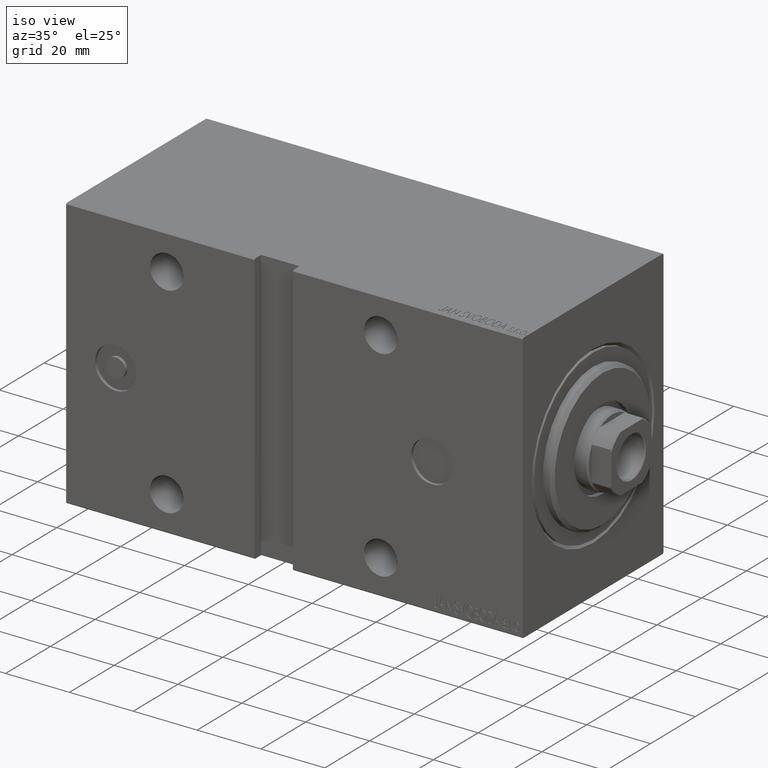
[diagram: clean part render]
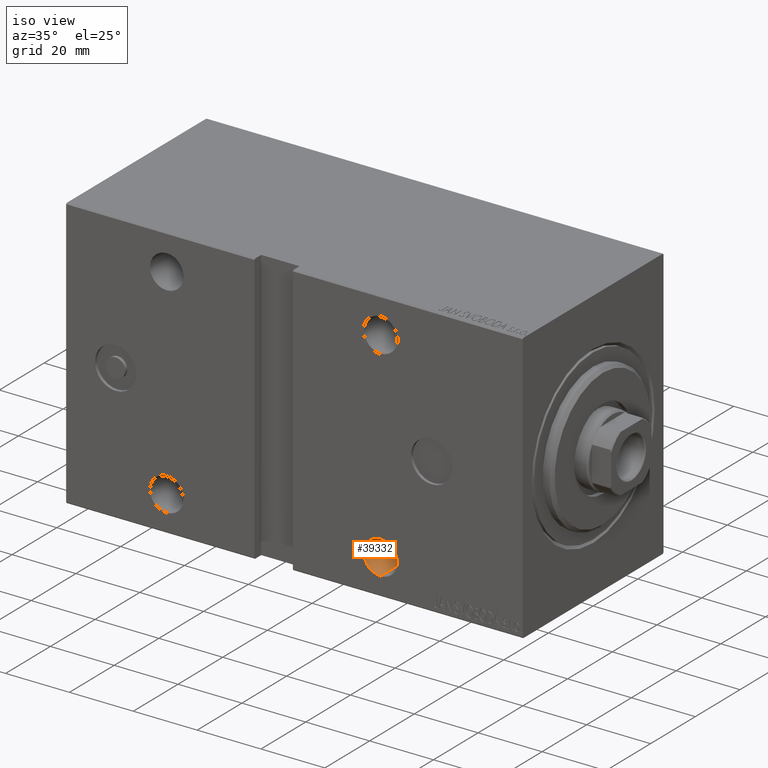
[diagram: same view with one face highlighted and labeled with its STEP entity id]
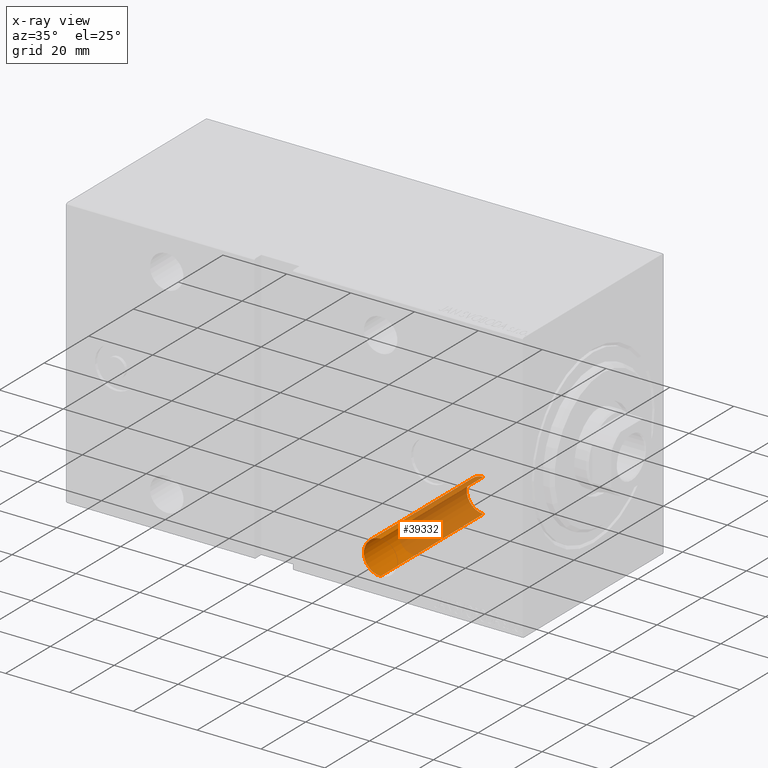
[diagram: x-ray of the same camera — body ghosted, the highlighted face saturated]
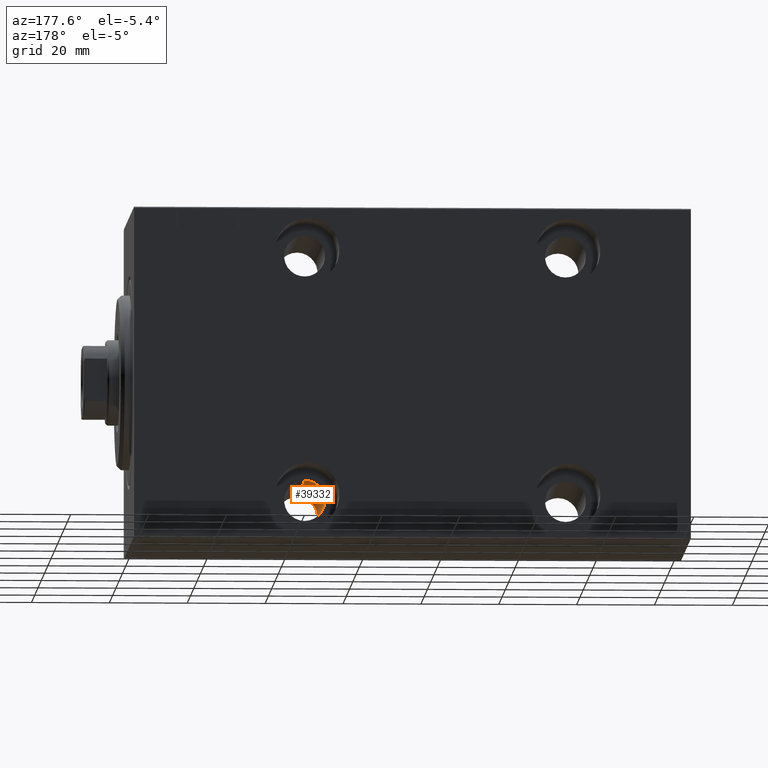
[diagram: same view with one face highlighted and labeled with its STEP entity id]
A machine part, iso view. The second image highlights one B-rep face of the part: STEP entity #39332.
The next image is the same camera in x-ray: the body ghosted, the highlighted face saturated — about 66% of this face is hidden behind the body in this view.
A second angle (auxiliary view) of the same face is appended — the face is thin or edge-on in the first view.
In plain terms, the highlighted cylindrical surface (edge-blend (fillet) strip) has radius 5.25 mm, axis along (0, -1, 0).
Its self-contained STEP definition (entity closure, byte-faithful):
#431 = FACE_OUTER_BOUND ( 'NONE', #41445, .T. ) ;
#1294 = DIRECTION ( 'NONE',  ( -0.000000000000000000, 1.000000000000000000, 1.261617073437677752E-16 ) ) ;
#4425 = CARTESIAN_POINT ( 'NONE',  ( 44.50000000000000000, 31.50000000000001421, -26.25000000000000000 ) ) ;
#5113 = LINE ( 'NONE', #38494, #8010 ) ;
#5143 = ORIENTED_EDGE ( 'NONE', *, *, #36064, .F. ) ;
#5244 = VERTEX_POINT ( 'NONE', #6611 ) ;
#6611 = CARTESIAN_POINT ( 'NONE',  ( 44.50000000000000000, -14.49999999999999289, -26.25000000000000355 ) ) ;
#8010 = VECTOR ( 'NONE', #31561, 1000.000000000000000 ) ;
#8047 = CARTESIAN_POINT ( 'NONE',  ( 44.50000000000000000, 31.50000000000001421, -36.74999999999999289 ) ) ;
#8673 = CARTESIAN_POINT ( 'NONE',  ( 44.50000000000000000, 31.50000000000001421, -31.49999999999999289 ) ) ;
#9537 = ORIENTED_EDGE ( 'NONE', *, *, #15369, .F. ) ;
#9586 = VERTEX_POINT ( 'NONE', #4425 ) ;
#11306 = ORIENTED_EDGE ( 'NONE', *, *, #32054, .F. ) ;
#13675 = DIRECTION ( 'NONE',  ( 0.000000000000000000, 0.000000000000000000, 1.000000000000000000 ) ) ;
#15369 = EDGE_CURVE ( 'NONE', #40821, #9586, #25179, .T. ) ;
#17338 = CYLINDRICAL_SURFACE ( 'NONE', #29530, 5.249999999999997335 ) ;
#17682 = CIRCLE ( 'NONE', #35000, 5.249999999999997335 ) ;
#18232 = ORIENTED_EDGE ( 'NONE', *, *, #21783, .T. ) ;
#19112 = LINE ( 'NONE', #31905, #34780 ) ;
#21572 = CARTESIAN_POINT ( 'NONE',  ( 44.50000000000000000, -14.49999999999999289, -31.50000000000000000 ) ) ;
#21783 = EDGE_CURVE ( 'NONE', #5244, #9586, #19112, .T. ) ;
#24919 = DIRECTION ( 'NONE',  ( 0.000000000000000000, -1.000000000000000000, -1.632680918566406300E-16 ) ) ;
#25179 = CIRCLE ( 'NONE', #31414, 5.249999999999997335 ) ;
#25457 = DIRECTION ( 'NONE',  ( -0.000000000000000000, 1.000000000000000000, -0.000000000000000000 ) ) ;
#29530 = AXIS2_PLACEMENT_3D ( 'NONE', #34041, #1294, #13675 ) ;
#31414 = AXIS2_PLACEMENT_3D ( 'NONE', #8673, #24919, #41854 ) ;
#31561 = DIRECTION ( 'NONE',  ( -0.000000000000000000, 1.000000000000000000, 1.261617073437677752E-16 ) ) ;
#31756 = DIRECTION ( 'NONE',  ( 0.000000000000000000, 0.000000000000000000, -1.000000000000000000 ) ) ;
#31905 = CARTESIAN_POINT ( 'NONE',  ( 44.50000000000000000, -31.50000000000002842, -26.25000000000000355 ) ) ;
#32054 = EDGE_CURVE ( 'NONE', #39115, #40821, #5113, .T. ) ;
#34041 = CARTESIAN_POINT ( 'NONE',  ( 44.50000000000000000, -31.50000000000002842, -31.50000000000000000 ) ) ;
#34780 = VECTOR ( 'NONE', #42314, 1000.000000000000000 ) ;
#35000 = AXIS2_PLACEMENT_3D ( 'NONE', #21572, #25457, #31756 ) ;
#36064 = EDGE_CURVE ( 'NONE', #5244, #39115, #17682, .T. ) ;
#38494 = CARTESIAN_POINT ( 'NONE',  ( 44.50000000000000000, -31.50000000000002842, -36.75000000000000000 ) ) ;
#38630 = CARTESIAN_POINT ( 'NONE',  ( 44.50000000000000000, -14.49999999999999289, -36.75000000000000000 ) ) ;
#39115 = VERTEX_POINT ( 'NONE', #38630 ) ;
#39332 = ADVANCED_FACE ( 'NONE', ( #431 ), #17338, .F. ) ;
#40821 = VERTEX_POINT ( 'NONE', #8047 ) ;
#41445 = EDGE_LOOP ( 'NONE', ( #11306, #5143, #18232, #9537 ) ) ;
#41854 = DIRECTION ( 'NONE',  ( 0.000000000000000000, 0.000000000000000000, -1.000000000000000000 ) ) ;
#42314 = DIRECTION ( 'NONE',  ( -0.000000000000000000, 1.000000000000000000, 1.261617073437677752E-16 ) ) ;